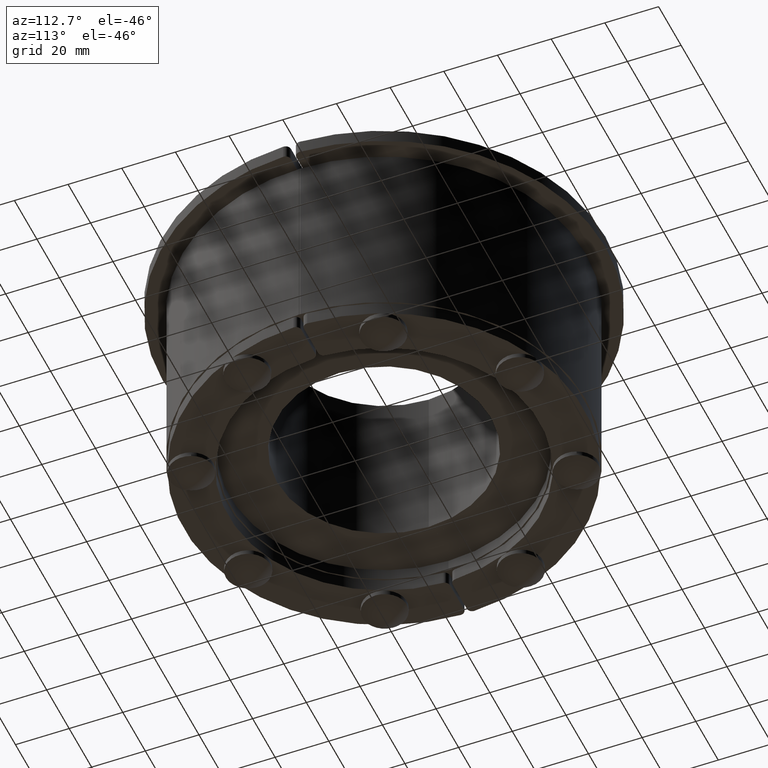
[diagram: clean part render]
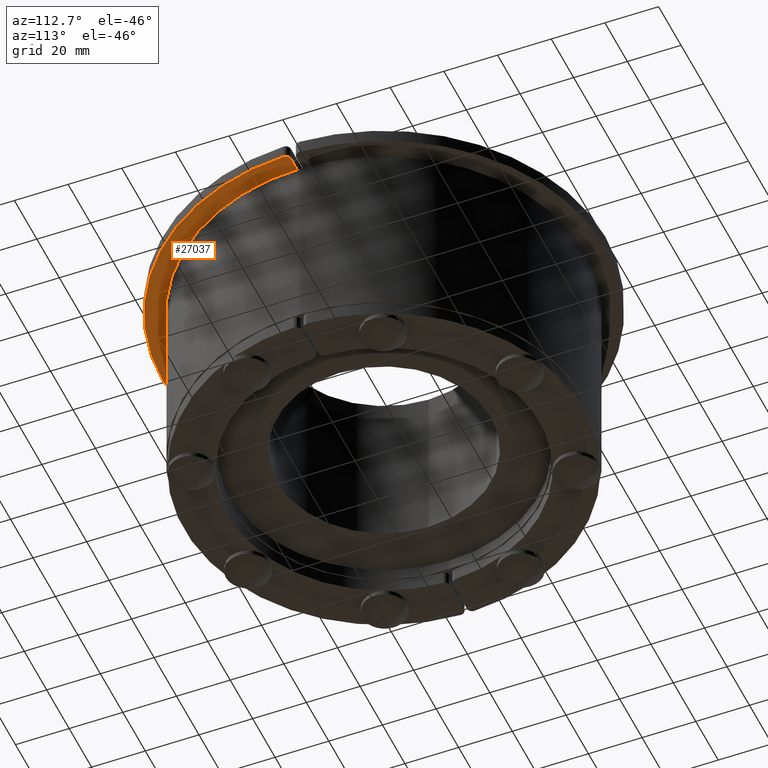
[diagram: same view with one face highlighted and labeled with its STEP entity id]
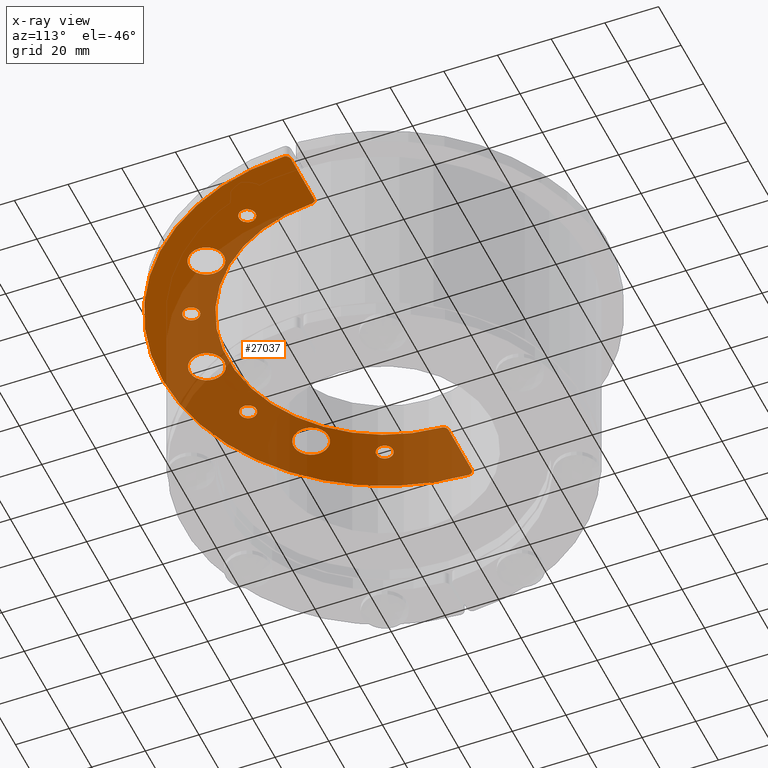
[diagram: x-ray of the same camera — body ghosted, the highlighted face saturated]
A machine part, auxiliary view. The second image highlights one B-rep face of the part: STEP entity #27037.
The next image is the same camera in x-ray: the body ghosted, the highlighted face saturated — about 66% of this face is hidden behind the body in this view.
In plain terms, the highlighted planar face has unit normal (-0, -0, 1).
Its self-contained STEP definition (entity closure, byte-faithful):
#26771=CARTESIAN_POINT('',(53.16904755831213,46.669047558312158,-5.0));
#26772=VERTEX_POINT('',#26771);
#26773=CARTESIAN_POINT('',(46.669047558312123,46.669047558312158,-5.0));
#26774=DIRECTION('',(0.0,0.0,1.0));
#26775=DIRECTION('',(-1.0,0.0,0.0));
#26776=AXIS2_PLACEMENT_3D('',#26773,#26774,#26775);
#26777=CIRCLE('',#26776,6.5);
#26778=EDGE_CURVE('',#26772,#26772,#26777,.T.);
#26799=CARTESIAN_POINT('',(-40.169047558312158,46.66904755831213,-5.0));
#26800=VERTEX_POINT('',#26799);
#26801=CARTESIAN_POINT('',(-46.669047558312158,46.66904755831213,-5.0));
#26802=DIRECTION('',(0.0,0.0,1.0));
#26803=DIRECTION('',(-1.0,0.0,0.0));
#26804=AXIS2_PLACEMENT_3D('',#26801,#26802,#26803);
#26805=CIRCLE('',#26804,6.5);
#26806=EDGE_CURVE('',#26800,#26800,#26805,.T.);
#26827=CARTESIAN_POINT('',(6.499999999999988,66.000000000000014,-5.0));
#26828=VERTEX_POINT('',#26827);
#26829=CARTESIAN_POINT('',(-1.212400E-014,66.000000000000014,-5.0));
#26830=DIRECTION('',(0.0,0.0,1.0));
#26831=DIRECTION('',(-1.0,0.0,0.0));
#26832=AXIS2_PLACEMENT_3D('',#26829,#26830,#26831);
#26833=CIRCLE('',#26832,6.5);
#26834=EDGE_CURVE('',#26828,#26828,#26833,.T.);
#26855=CARTESIAN_POINT('',(80.444079956203097,1.0,-5.0));
#26856=VERTEX_POINT('',#26855);
#26857=CARTESIAN_POINT('',(82.4426906383448,3.074534161490685,-5.0));
#26858=VERTEX_POINT('',#26857);
#26859=CARTESIAN_POINT('',(80.444079956203097,3.0,-5.0));
#26860=DIRECTION('',(0.0,0.0,1.0));
#26861=DIRECTION('',(0.720162162552761,-0.693805779470977,0.0));
#26862=AXIS2_PLACEMENT_3D('',#26859,#26860,#26861);
#26863=CIRCLE('',#26862,2.0);
#26864=EDGE_CURVE('',#26856,#26858,#26863,.T.);
#26898=CARTESIAN_POINT('',(-82.4426906383448,3.074534161490687,-5.0));
#26899=VERTEX_POINT('',#26898);
#26900=CARTESIAN_POINT('',(0.0,0.0,-5.0));
#26901=DIRECTION('',(0.0,0.0,-1.0));
#26902=DIRECTION('',(0.999926535409833,0.012121212121212,0.0));
#26903=AXIS2_PLACEMENT_3D('',#26900,#26901,#26902);
#26904=CIRCLE('',#26903,82.499999999999972);
#26905=EDGE_CURVE('',#26899,#26858,#26904,.T.);
#26925=CARTESIAN_POINT('',(1.024684E-013,40.586098782080043,-5.0));
#26926=DIRECTION('',(0.0,0.0,1.0));
#26927=DIRECTION('',(1.0,0.0,0.0));
#26928=AXIS2_PLACEMENT_3D('',#26925,#26926,#26927);
#26929=PLANE('',#26928);
#26930=ORIENTED_EDGE('',*,*,#26864,.F.);
#26931=CARTESIAN_POINT('',(59.924953066314551,1.0,-5.0));
#26932=VERTEX_POINT('',#26931);
#26933=CARTESIAN_POINT('',(80.444079956203097,1.0,-5.0));
#26934=DIRECTION('',(-1.0,0.0,0.0));
#26935=VECTOR('',#26934,20.51912688988854);
#26936=LINE('',#26933,#26935);
#26937=EDGE_CURVE('',#26856,#26932,#26936,.T.);
#26938=ORIENTED_EDGE('',*,*,#26937,.T.);
#26939=CARTESIAN_POINT('',(57.927454630770725,2.900000000000005,-5.0));
#26940=VERTEX_POINT('',#26939);
#26941=CARTESIAN_POINT('',(59.924953066314551,3.000000000000005,-5.0));
#26942=DIRECTION('',(0.0,0.0,1.0));
#26943=DIRECTION('',(-0.689202437604515,-0.724568837309468,0.0));
#26944=AXIS2_PLACEMENT_3D('',#26941,#26942,#26943);
#26945=CIRCLE('',#26944,2.0);
#26946=EDGE_CURVE('',#26940,#26932,#26945,.T.);
#26947=ORIENTED_EDGE('',*,*,#26946,.F.);
#26948=CARTESIAN_POINT('',(-57.927454630770725,2.9,-5.0));
#26949=VERTEX_POINT('',#26948);
#26950=CARTESIAN_POINT('',(0.0,0.0,-5.0));
#26951=DIRECTION('',(0.0,0.0,1.0));
#26952=DIRECTION('',(-0.999851356372274,-0.017241379310345,0.0));
#26953=AXIS2_PLACEMENT_3D('',#26950,#26951,#26952);
#26954=CIRCLE('',#26953,58.000000000000007);
#26955=EDGE_CURVE('',#26940,#26949,#26954,.T.);
#26956=ORIENTED_EDGE('',*,*,#26955,.T.);
#26957=CARTESIAN_POINT('',(-59.924953066314551,1.0,-5.0));
#26958=VERTEX_POINT('',#26957);
#26959=CARTESIAN_POINT('',(-59.924953066314551,3.0,-5.0));
#26960=DIRECTION('',(0.0,0.0,1.0));
#26961=DIRECTION('',(0.689202437604515,-0.724568837309468,0.0));
#26962=AXIS2_PLACEMENT_3D('',#26959,#26960,#26961);
#26963=CIRCLE('',#26962,2.0);
#26964=EDGE_CURVE('',#26958,#26949,#26963,.T.);
#26965=ORIENTED_EDGE('',*,*,#26964,.F.);
#26966=CARTESIAN_POINT('',(-80.444079956203097,1.0,-5.0));
#26967=VERTEX_POINT('',#26966);
#26968=CARTESIAN_POINT('',(-59.924953066314551,1.0,-5.0));
#26969=DIRECTION('',(-1.0,0.0,0.0));
#26970=VECTOR('',#26969,20.519126889888547);
#26971=LINE('',#26968,#26970);
#26972=EDGE_CURVE('',#26958,#26967,#26971,.T.);
#26973=ORIENTED_EDGE('',*,*,#26972,.T.);
#26974=CARTESIAN_POINT('',(-80.444079956203097,3.000000000000004,-5.0));
#26975=DIRECTION('',(0.0,0.0,1.0));
#26976=DIRECTION('',(-0.720162162552761,-0.693805779470978,0.0));
#26977=AXIS2_PLACEMENT_3D('',#26974,#26975,#26976);
#26978=CIRCLE('',#26977,2.0);
#26979=EDGE_CURVE('',#26899,#26967,#26978,.T.);
#26980=ORIENTED_EDGE('',*,*,#26979,.F.);
#26981=ORIENTED_EDGE('',*,*,#26905,.T.);
#26982=EDGE_LOOP('',(#26930,#26938,#26947,#26956,#26965,#26973,#26980,#26981));
#26983=FACE_OUTER_BOUND('',#26982,.T.);
#26984=ORIENTED_EDGE('',*,*,#26778,.T.);
#26985=EDGE_LOOP('',(#26984));
#26986=FACE_BOUND('',#26985,.T.);
#26987=ORIENTED_EDGE('',*,*,#26806,.T.);
#26988=EDGE_LOOP('',(#26987));
#26989=FACE_BOUND('',#26988,.T.);
#26990=ORIENTED_EDGE('',*,*,#26834,.T.);
#26991=EDGE_LOOP('',(#26990));
#26992=FACE_BOUND('',#26991,.T.);
#26993=CARTESIAN_POINT('',(28.452777394187187,61.207019028872757,-5.0));
#26994=VERTEX_POINT('',#26993);
#26995=CARTESIAN_POINT('',(25.352777394187189,61.207019028872757,-5.0));
#26996=DIRECTION('',(0.0,0.0,1.0));
#26997=DIRECTION('',(-1.0,0.0,0.0));
#26998=AXIS2_PLACEMENT_3D('',#26995,#26996,#26997);
#26999=CIRCLE('',#26998,3.099999999999997);
#27000=EDGE_CURVE('',#26994,#26994,#26999,.T.);
#27001=ORIENTED_EDGE('',*,*,#27000,.T.);
#27002=EDGE_LOOP('',(#27001));
#27003=FACE_BOUND('',#27002,.T.);
#27004=CARTESIAN_POINT('',(-58.107019028872742,25.352777394187221,-5.0));
#27005=VERTEX_POINT('',#27004);
#27006=CARTESIAN_POINT('',(-61.20701902887275,25.352777394187221,-5.0));
#27007=DIRECTION('',(0.0,0.0,1.0));
#27008=DIRECTION('',(-1.0,0.0,0.0));
#27009=AXIS2_PLACEMENT_3D('',#27006,#27007,#27008);
#27010=CIRCLE('',#27009,3.100000000000005);
#27011=EDGE_CURVE('',#27005,#27005,#27010,.T.);
#27012=ORIENTED_EDGE('',*,*,#27011,.T.);
#27013=EDGE_LOOP('',(#27012));
#27014=FACE_BOUND('',#27013,.T.);
#27015=CARTESIAN_POINT('',(-22.252777394187181,61.207019028872764,-5.0));
#27016=VERTEX_POINT('',#27015);
#27017=CARTESIAN_POINT('',(-25.352777394187186,61.207019028872764,-5.0));
#27018=DIRECTION('',(0.0,0.0,1.0));
#27019=DIRECTION('',(-1.0,0.0,0.0));
#27020=AXIS2_PLACEMENT_3D('',#27017,#27018,#27019);
#27021=CIRCLE('',#27020,3.100000000000004);
#27022=EDGE_CURVE('',#27016,#27016,#27021,.T.);
#27023=ORIENTED_EDGE('',*,*,#27022,.T.);
#27024=EDGE_LOOP('',(#27023));
#27025=FACE_BOUND('',#27024,.T.);
#27026=CARTESIAN_POINT('',(64.307019028872759,25.352777394187211,-5.0));
#27027=VERTEX_POINT('',#27026);
#27028=CARTESIAN_POINT('',(61.20701902887275,25.352777394187211,-5.0));
#27029=DIRECTION('',(0.0,0.0,1.0));
#27030=DIRECTION('',(-1.0,0.0,0.0));
#27031=AXIS2_PLACEMENT_3D('',#27028,#27029,#27030);
#27032=CIRCLE('',#27031,3.100000000000003);
#27033=EDGE_CURVE('',#27027,#27027,#27032,.T.);
#27034=ORIENTED_EDGE('',*,*,#27033,.T.);
#27035=EDGE_LOOP('',(#27034));
#27036=FACE_BOUND('',#27035,.T.);
#27037=ADVANCED_FACE('',(#26983,#26986,#26989,#26992,#27003,#27014,#27025,#27036),#26929,.F.);